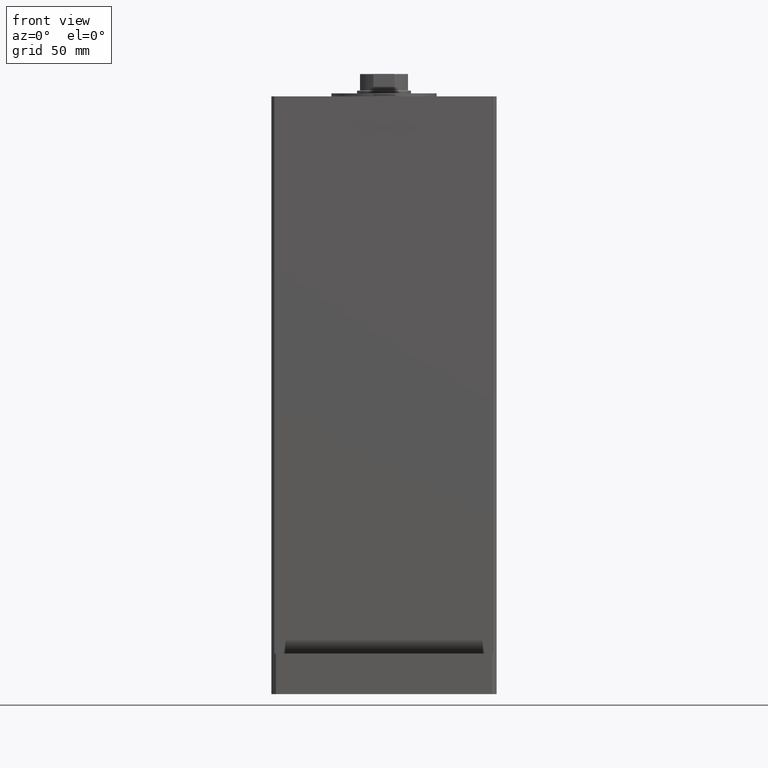
[diagram: clean part render]
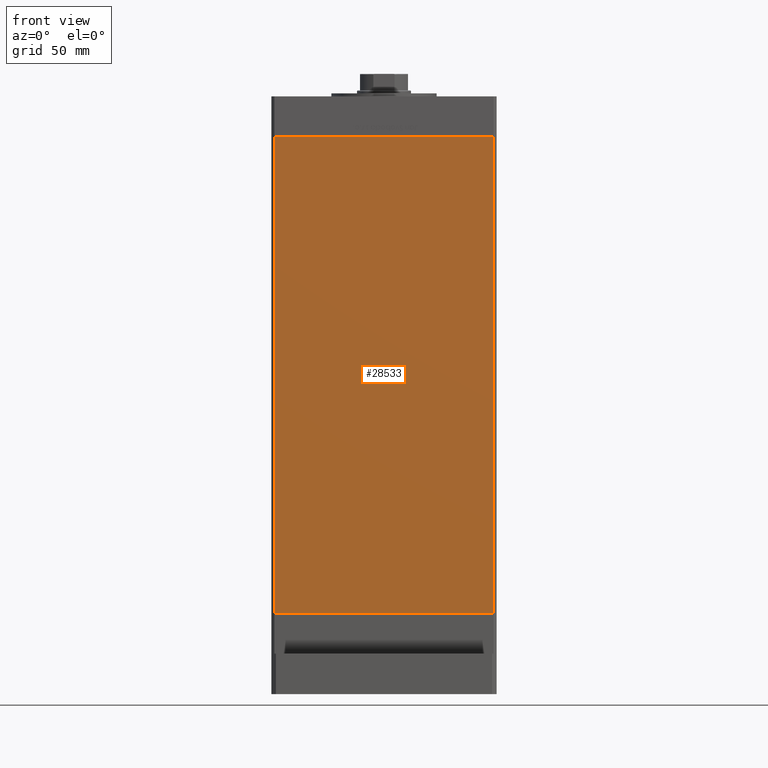
[diagram: same view with one face highlighted and labeled with its STEP entity id]
A machine part, front view. The second image highlights one B-rep face of the part: STEP entity #28533.
In plain terms, the highlighted planar face has unit normal (0, 1, 0).
Its self-contained STEP definition (entity closure, byte-faithful):
#875 = ORIENTED_EDGE ( 'NONE', *, *, #48814, .F. ) ;
#2287 = VECTOR ( 'NONE', #13861, 1000.000000000000000 ) ;
#3056 = VECTOR ( 'NONE', #32794, 1000.000000000000000 ) ;
#4244 = VECTOR ( 'NONE', #46435, 1000.000000000000000 ) ;
#4325 = EDGE_CURVE ( 'NONE', #45509, #32970, #54914, .T. ) ;
#7111 = CARTESIAN_POINT ( 'NONE',  ( -72.99999999999998579, -62.50000000000000000, 317.0000000000000000 ) ) ;
#7207 = AXIS2_PLACEMENT_3D ( 'NONE', #7111, #46662, #25150 ) ;
#13861 = DIRECTION ( 'NONE',  ( -0.000000000000000000, -0.000000000000000000, -1.000000000000000000 ) ) ;
#15662 = CARTESIAN_POINT ( 'NONE',  ( -72.99999999999998579, -62.50000000000000000, 0.000000000000000000 ) ) ;
#15798 = CARTESIAN_POINT ( 'NONE',  ( 72.99999999999998579, -62.50000000000000000, 0.000000000000000000 ) ) ;
#15858 = CARTESIAN_POINT ( 'NONE',  ( -72.99999999999998579, -62.50000000000000000, 317.0000000000000000 ) ) ;
#15982 = CARTESIAN_POINT ( 'NONE',  ( -72.99999999999998579, -62.50000000000000000, 317.0000000000000000 ) ) ;
#16264 = FACE_OUTER_BOUND ( 'NONE', #18390, .T. ) ;
#18390 = EDGE_LOOP ( 'NONE', ( #44851, #43246, #875, #19151 ) ) ;
#19151 = ORIENTED_EDGE ( 'NONE', *, *, #37644, .T. ) ;
#19579 = CARTESIAN_POINT ( 'NONE',  ( 72.99999999999998579, -62.50000000000000000, 317.0000000000000000 ) ) ;
#23869 = VERTEX_POINT ( 'NONE', #15982 ) ;
#25150 = DIRECTION ( 'NONE',  ( 0.000000000000000000, -0.000000000000000000, 1.000000000000000000 ) ) ;
#25855 = VERTEX_POINT ( 'NONE', #51345 ) ;
#28533 = ADVANCED_FACE ( 'NONE', ( #16264 ), #54955, .F. ) ;
#28959 = CARTESIAN_POINT ( 'NONE',  ( -72.99999999999998579, -62.50000000000000000, 317.0000000000000000 ) ) ;
#32197 = LINE ( 'NONE', #19579, #2287 ) ;
#32586 = DIRECTION ( 'NONE',  ( 1.000000000000000000, 0.000000000000000000, 0.000000000000000000 ) ) ;
#32794 = DIRECTION ( 'NONE',  ( -0.000000000000000000, -0.000000000000000000, -1.000000000000000000 ) ) ;
#32970 = VERTEX_POINT ( 'NONE', #15798 ) ;
#37644 = EDGE_CURVE ( 'NONE', #23869, #45509, #54835, .T. ) ;
#43246 = ORIENTED_EDGE ( 'NONE', *, *, #45617, .F. ) ;
#44851 = ORIENTED_EDGE ( 'NONE', *, *, #4325, .T. ) ;
#45509 = VERTEX_POINT ( 'NONE', #47425 ) ;
#45617 = EDGE_CURVE ( 'NONE', #25855, #32970, #32197, .T. ) ;
#46435 = DIRECTION ( 'NONE',  ( 1.000000000000000000, 0.000000000000000000, 0.000000000000000000 ) ) ;
#46662 = DIRECTION ( 'NONE',  ( 0.000000000000000000, 1.000000000000000000, 0.000000000000000000 ) ) ;
#47425 = CARTESIAN_POINT ( 'NONE',  ( -72.99999999999998579, -62.50000000000000000, 0.000000000000000000 ) ) ;
#48080 = VECTOR ( 'NONE', #32586, 1000.000000000000000 ) ;
#48814 = EDGE_CURVE ( 'NONE', #23869, #25855, #50721, .T. ) ;
#50721 = LINE ( 'NONE', #28959, #4244 ) ;
#51345 = CARTESIAN_POINT ( 'NONE',  ( 72.99999999999998579, -62.50000000000000000, 317.0000000000000000 ) ) ;
#54835 = LINE ( 'NONE', #15858, #3056 ) ;
#54914 = LINE ( 'NONE', #15662, #48080 ) ;
#54955 = PLANE ( 'NONE',  #7207 ) ;